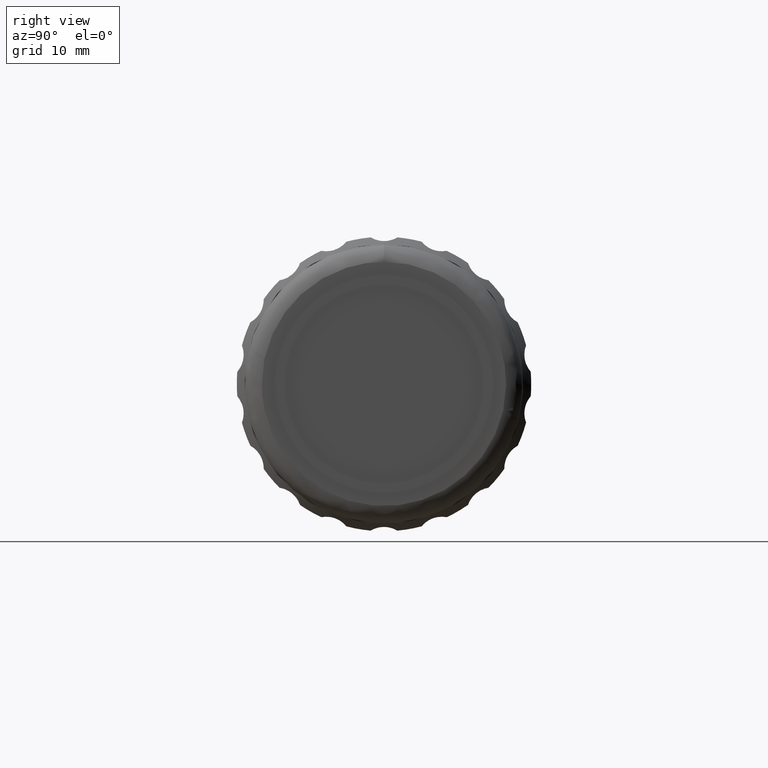
[diagram: clean part render]
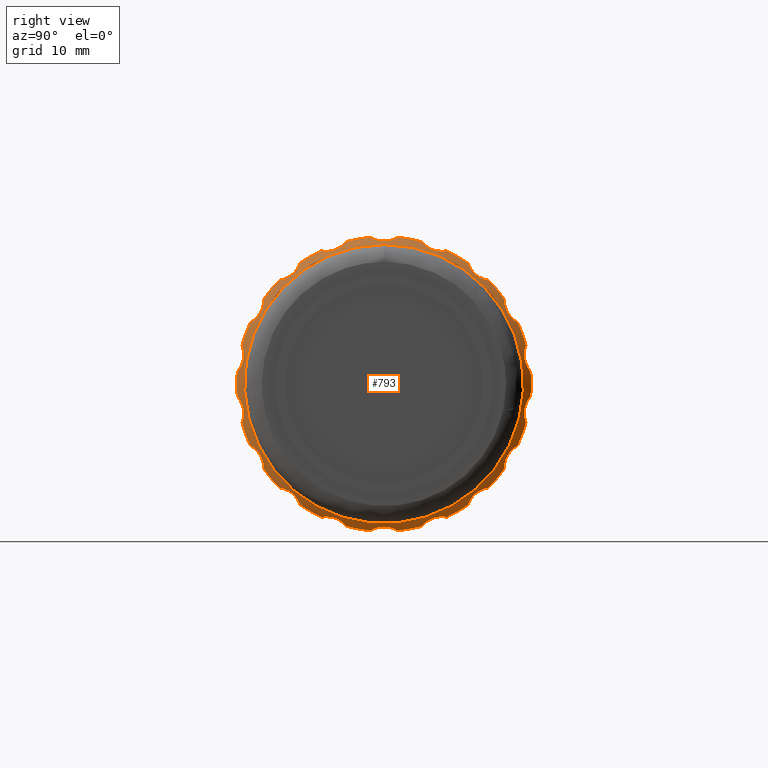
[diagram: same view with one face highlighted and labeled with its STEP entity id]
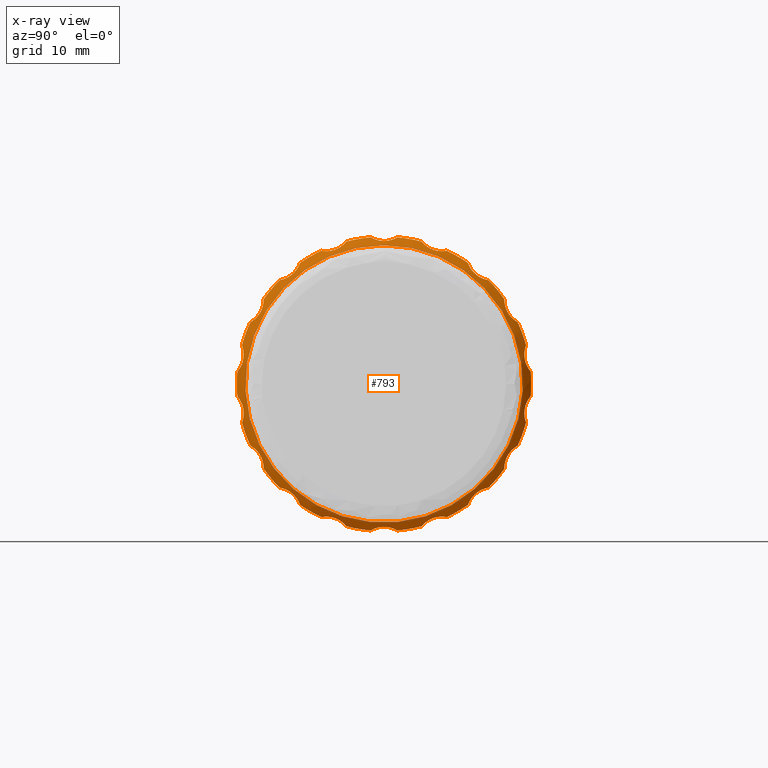
[diagram: x-ray of the same camera — body ghosted, the highlighted face saturated]
A machine part, right view. The second image highlights one B-rep face of the part: STEP entity #793.
The next image is the same camera in x-ray: the body ghosted, the highlighted face saturated — about 11% of this face is hidden behind the body in this view.
In plain terms, the highlighted conical surface has half-angle 45 deg.
Its self-contained STEP definition (entity closure, byte-faithful):
#4 = CARTESIAN_POINT ( 'NONE',  ( 32.44685803487879383, 41.68421451916365328, -16.43753695927281200 ) ) ;
#5 = CARTESIAN_POINT ( 'NONE',  ( 32.44685803487880804, 30.58621645913232001, -7.125210880294336135 ) ) ;
#6 = CARTESIAN_POINT ( 'NONE',  ( 32.93501117040981541, 51.93341409690916066, -15.41763307084374546 ) ) ;
#9 = CARTESIAN_POINT ( 'NONE',  ( 32.85273454226017975, 29.81471811820888362, -3.569201001427910303 ) ) ;
#15 = CARTESIAN_POINT ( 'NONE',  ( 32.71832649179925312, 57.59256539127557062, 12.08340433005123948 ) ) ;
#26 = CARTESIAN_POINT ( 'NONE',  ( 32.71832649179930286, 50.69969541838543137, -16.06300466438838725 ) ) ;
#27 = ORIENTED_EDGE ( 'NONE', *, *, #140, .T. ) ;
#29 = CARTESIAN_POINT ( 'NONE',  ( 32.71993598786254154, 29.39155459811817650, 1.821850393098595644 ) ) ;
#31 = DIRECTION ( 'NONE',  ( 1.000000000000000000, -0.000000000000000000, -0.000000000000000000 ) ) ;
#36 = EDGE_CURVE ( 'NONE', #402, #1075, #71, .T. ) ;
#43 = B_SPLINE_CURVE_WITH_KNOTS ( 'NONE', 3,
 ( #46, #1510, #26, #1343, #2009, #1030, #1656, #1333, #6, #530, #165, #652, #1321, #506 ),
 .UNSPECIFIED., .F., .F.,
 ( 4, 2, 2, 2, 2, 2, 4 ),
 ( 1.201851678989727231E-17, 0.0008570537395405912907, 0.001285580609310872733, 0.001714107479081154392, 0.002142634348851436485, 0.002571161218621717710, 0.003428214958162281029 ),
 .UNSPECIFIED. ) ;
#44 = ORIENTED_EDGE ( 'NONE', *, *, #362, .F. ) ;
#45 = CARTESIAN_POINT ( 'NONE',  ( 32.85210940846934591, 46.72407182862872332, 16.58035111081103352 ) ) ;
#46 = CARTESIAN_POINT ( 'NONE',  ( 32.44685803487880804, 50.35770948083634835, -16.43753695927276226 ) ) ;
#49 = CARTESIAN_POINT ( 'NONE',  ( 32.59371544402078058, 29.70640130127866385, 4.231266864385898607 ) ) ;
#61 = CARTESIAN_POINT ( 'NONE',  ( 32.44685803487877251, 62.96184413496547450, -1.416514203673302941 ) ) ;
#64 = CARTESIAN_POINT ( 'NONE',  ( 32.59397570363890395, 44.68734838835946022, 16.80123075031171354 ) ) ;
#71 = B_SPLINE_CURVE_WITH_KNOTS ( 'NONE', 3,
 ( #284, #2078, #1447, #270, #585, #1756, #1459, #116, #1279, #768, #948, #2112, #2125, #625 ),
 .UNSPECIFIED., .F., .F.,
 ( 4, 2, 2, 2, 2, 2, 4 ),
 ( 3.469446951953614189E-18, 0.0008570537395405488984, 0.001285580609310823510, 0.001714107479081098230, 0.002142634348851372734, 0.002571161218621647020, 0.003428214958162201231 ),
 .UNSPECIFIED. ) ;
#74 = ORIENTED_EDGE ( 'NONE', *, *, #1518, .T. ) ;
#76 = CARTESIAN_POINT ( 'NONE',  ( 32.94700126034479837, 31.80217333596844398, -8.372093230236085759 ) ) ;
#77 = CARTESIAN_POINT ( 'NONE',  ( 32.44685803487878673, 53.26466578228019699, -15.37949139323468017 ) ) ;
#80 = CIRCLE ( 'NONE', #351, 17.00000000000000000 ) ;
#84 = AXIS2_PLACEMENT_3D ( 'NONE', #972, #1116, #1319 ) ;
#85 = AXIS2_PLACEMENT_3D ( 'NONE', #1295, #31, #1870 ) ;
#90 = CARTESIAN_POINT ( 'NONE',  ( 32.85273454226021528, 34.82682132065500724, 12.25041840084325884 ) ) ;
#94 = CARTESIAN_POINT ( 'NONE',  ( 32.71993598786254154, 62.65036940188181802, -1.821850393098604748 ) ) ;
#96 = EDGE_LOOP ( 'NONE', ( #1906, #659, #615, #1448, #1063, #937, #1715, #1821, #2030, #1894, #1689, #1516, #1806, #436, #432, #166, #27, #1739, #44, #119, #1078, #420, #1659, #201, #1260, #74, #1148, #356, #648, #2059, #1938, #1208, #990, #2093, #1785, #1132 ) ) ;
#109 = CARTESIAN_POINT ( 'NONE',  ( 32.71832649179923180, 32.11174389140475682, 9.297543592584467831 ) ) ;
#116 = CARTESIAN_POINT ( 'NONE',  ( 32.94700126034475574, 56.73493106221781090, -12.54897458209228844 ) ) ;
#118 = B_SPLINE_CURVE_WITH_KNOTS ( 'NONE', 3,
 ( #1860, #49, #371, #544, #1033, #844, #1513, #177, #862, #2034, #1205, #29, #992, #1661 ),
 .UNSPECIFIED., .F., .F.,
 ( 4, 2, 2, 2, 2, 2, 4 ),
 ( 2.301370753934467615E-17, 0.0008570537395405523678, 0.001285580609310820258, 0.001714107479081088256, 0.002142634348851356254, 0.002571161218621624035, 0.003428214958162163501 ),
 .UNSPECIFIED. ) ;
#119 = ORIENTED_EDGE ( 'NONE', *, *, #440, .T. ) ;
#124 = DIRECTION ( 'NONE',  ( 1.000000000000000000, -0.000000000000000000, -0.000000000000000000 ) ) ;
#135 = CARTESIAN_POINT ( 'NONE',  ( 32.94700126034474152, 62.24567731064608722, 3.004082092195003106 ) ) ;
#140 = EDGE_CURVE ( 'NONE', #1632, #297, #1847, .T. ) ;
#141 = VERTEX_POINT ( 'NONE', #1593 ) ;
#142 = CARTESIAN_POINT ( 'NONE',  ( 32.44685803487879383, 59.90894840009004696, 9.804276299192796529 ) ) ;
#146 = CARTESIAN_POINT ( 'NONE',  ( 32.44685803487878673, 46.02096199999999726, 0.000000000000000000 ) ) ;
#147 = CARTESIAN_POINT ( 'NONE',  ( 32.94671223884981259, 60.38356800619005327, 8.123483399945433447 ) ) ;
#154 = CARTESIAN_POINT ( 'NONE',  ( 32.59397570363886842, 30.80386254956549053, 7.245672108642462028 ) ) ;
#155 = CARTESIAN_POINT ( 'NONE',  ( 32.44685803487880804, 50.35770948083634835, -16.43753695927276226 ) ) ;
#159 = CARTESIAN_POINT ( 'NONE',  ( 32.93404516599888154, 62.33144101137909843, 2.580766064489510292 ) ) ;
#161 = CARTESIAN_POINT ( 'NONE',  ( 32.44685803487877251, 44.47420285922230221, -16.92948717948720727 ) ) ;
#163 = CARTESIAN_POINT ( 'NONE',  ( 32.59371544402080190, 57.84262694411020078, 12.01319058448289923 ) ) ;
#165 = CARTESIAN_POINT ( 'NONE',  ( 32.85273454226022949, 52.35012353516404460, -15.34024937236954855 ) ) ;
#166 = ORIENTED_EDGE ( 'NONE', *, *, #1272, .T. ) ;
#168 = CARTESIAN_POINT ( 'NONE',  ( 32.94700126034471310, 29.79624668935391441, -3.004082092195002662 ) ) ;
#173 = CARTESIAN_POINT ( 'NONE',  ( 32.44685803487877962, 58.08791284195770288, 11.97450196783888643 ) ) ;
#177 = CARTESIAN_POINT ( 'NONE',  ( 32.94700126034472021, 29.74726016049911692, 2.726265681694551635 ) ) ;
#180 = CARTESIAN_POINT ( 'NONE',  ( 32.44685803487875120, 59.90894840009008959, -9.804276299192858701 ) ) ;
#185 = AXIS2_PLACEMENT_3D ( 'NONE', #598, #1263, #437 ) ;
#190 = CARTESIAN_POINT ( 'NONE',  ( 32.44685803487879383, 61.45570754086768517, -7.125210880294358340 ) ) ;
#194 = DIRECTION ( 'NONE',  ( 1.000000000000000000, -0.000000000000000000, -0.000000000000000000 ) ) ;
#195 = DIRECTION ( 'NONE',  ( 0.000000000000000000, 1.000000000000000000, 0.000000000000000000 ) ) ;
#201 = ORIENTED_EDGE ( 'NONE', *, *, #807, .T. ) ;
#202 = EDGE_CURVE ( 'NONE', #1006, #621, #1270, .T. ) ;
#207 = CARTESIAN_POINT ( 'NONE',  ( 32.59371544402079479, 29.24311120064134784, -1.603818139432597878 ) ) ;
#208 = CARTESIAN_POINT ( 'NONE',  ( 32.44685803487880094, 46.02096199999999726, 0.000000000000000000 ) ) ;
#226 = EDGE_CURVE ( 'NONE', #1884, #711, #759, .T. ) ;
#233 = CARTESIAN_POINT ( 'NONE',  ( 32.88806413580809362, 45.45844958071401720, 16.54982318938169783 ) ) ;
#234 = CARTESIAN_POINT ( 'NONE',  ( 32.85210940846934591, 35.90193111884155996, 13.15323611948971916 ) ) ;
#237 = CARTESIAN_POINT ( 'NONE',  ( 32.44685803487878673, 55.71814035268528187, 13.96297718956140166 ) ) ;
#238 = CARTESIAN_POINT ( 'NONE',  ( 32.88806413580810073, 39.83200033124971640, 15.35935614810683880 ) ) ;
#239 = VERTEX_POINT ( 'NONE', #523 ) ;
#240 = CIRCLE ( 'NONE', #1736, 17.00000000000001421 ) ;
#244 = CARTESIAN_POINT ( 'NONE',  ( 32.88806413580806520, 31.40713848021163557, 7.787761549644993231 ) ) ;
#246 = VERTEX_POINT ( 'NONE', #237 ) ;
#247 = CARTESIAN_POINT ( 'NONE',  ( 32.44685803487877962, 62.42466032279407528, -4.463034991433911358 ) ) ;
#248 = CARTESIAN_POINT ( 'NONE',  ( 32.88806413580805099, 62.41703544440839835, -2.319880045867577234 ) ) ;
#249 = AXIS2_PLACEMENT_3D ( 'NONE', #815, #194, #641 ) ;
#252 = VERTEX_POINT ( 'NONE', #1728 ) ;
#256 = CARTESIAN_POINT ( 'NONE',  ( 32.88671825240741242, 31.97150365186628918, 8.767556099430427352 ) ) ;
#259 = CARTESIAN_POINT ( 'NONE',  ( 32.71832649179923891, 34.44935860872440969, -12.08340433005123593 ) ) ;
#268 = CARTESIAN_POINT ( 'NONE',  ( 32.44685803487878673, 33.95401115804229875, -11.97450196783888821 ) ) ;
#269 = CARTESIAN_POINT ( 'NONE',  ( 32.71993598786257706, 39.28402702137709923, 15.31241445645988897 ) ) ;
#270 = CARTESIAN_POINT ( 'NONE',  ( 32.85210940846933880, 56.13999288115840614, -13.15323611948971383 ) ) ;
#277 = B_SPLINE_CURVE_WITH_KNOTS ( 'NONE', 3,
 ( #1600, #445, #613, #965, #294, #456, #147, #1792, #1969, #305, #1634, #281, #645, #799 ),
 .UNSPECIFIED., .F., .F.,
 ( 4, 2, 2, 2, 2, 2, 4 ),
 ( 1.821459649775647449E-17, 0.0008570537395405575720, 0.001285580609310824811, 0.001714107479081089990, 0.002142634348851355387, 0.002571161218621621000, 0.003428214958162146588 ),
 .UNSPECIFIED. ) ;
#279 = CARTESIAN_POINT ( 'NONE',  ( 32.93501117040979409, 35.62512614287679469, -12.82915025000381171 ) ) ;
#280 = EDGE_CURVE ( 'NONE', #856, #1405, #832, .T. ) ;
#281 = CARTESIAN_POINT ( 'NONE',  ( 32.71993598786254864, 59.93088999195953903, 9.293558664531927249 ) ) ;
#284 = CARTESIAN_POINT ( 'NONE',  ( 32.44685803487879383, 55.71814035268526766, -13.96297718956138922 ) ) ;
#287 = VERTEX_POINT ( 'NONE', #380 ) ;
#292 = EDGE_LOOP ( 'NONE', ( #1269 ) ) ;
#294 = CARTESIAN_POINT ( 'NONE',  ( 32.88671825240740532, 60.63861748527881446, 7.783409789179931870 ) ) ;
#297 = VERTEX_POINT ( 'NONE', #247 ) ;
#302 = DIRECTION ( 'NONE',  ( 1.000000000000000000, -0.000000000000000000, -0.000000000000000000 ) ) ;
#304 = CARTESIAN_POINT ( 'NONE',  ( 32.88671825240740532, 62.41914792436489989, 2.314480119284867854 ) ) ;
#305 = CARTESIAN_POINT ( 'NONE',  ( 32.88806413580805099, 60.07227310050246416, 8.762061639736737462 ) ) ;
#311 = CARTESIAN_POINT ( 'NONE',  ( 32.59371544402083742, 30.80347752111280712, -7.245459005800692687 ) ) ;
#324 = CARTESIAN_POINT ( 'NONE',  ( 32.44685803487875120, 59.90894840009008959, -9.804276299192858701 ) ) ;
#325 = CARTESIAN_POINT ( 'NONE',  ( 32.44685803487877962, 29.08007986503451647, 1.416514203673290728 ) ) ;
#327 = CARTESIAN_POINT ( 'NONE',  ( 32.44685803487877962, 38.77725821771979042, -15.37949139323468373 ) ) ;
#329 = CARTESIAN_POINT ( 'NONE',  ( 32.85210940846933880, 45.31785217137128541, -16.58035111081102997 ) ) ;
#335 = CARTESIAN_POINT ( 'NONE',  ( 32.59371544402078058, 62.79881279935864313, 1.603818139432604095 ) ) ;
#337 = CARTESIAN_POINT ( 'NONE',  ( 32.94700126034472731, 60.38080175225200463, -8.127785578975545988 ) ) ;
#338 = VERTEX_POINT ( 'NONE', #1277 ) ;
#341 = CARTESIAN_POINT ( 'NONE',  ( 32.44685803487878673, 61.45570754086772070, 7.125210880294360116 ) ) ;
#344 = CARTESIAN_POINT ( 'NONE',  ( 32.85273454226024370, 51.03306520244602495, 15.81961940227117758 ) ) ;
#347 = EDGE_CURVE ( 'NONE', #1075, #880, #1117, .T. ) ;
#349 = CARTESIAN_POINT ( 'NONE',  ( 32.94671223884979838, 60.23740799466897045, -8.376639965934810306 ) ) ;
#351 = AXIS2_PLACEMENT_3D ( 'NONE', #1623, #1258, #1926 ) ;
#356 = ORIENTED_EDGE ( 'NONE', *, *, #1065, .T. ) ;
#358 = CARTESIAN_POINT ( 'NONE',  ( 32.88671825240740532, 29.62277607563510173, -2.314480119284870518 ) ) ;
#362 = EDGE_CURVE ( 'NONE', #572, #901, #80, .T. ) ;
#367 = CARTESIAN_POINT ( 'NONE',  ( 32.44685803487878673, 38.77725821771978332, 15.37949139323467307 ) ) ;
#370 = CARTESIAN_POINT ( 'NONE',  ( 32.44685803487877251, 62.96184413496547450, 1.416514203673303385 ) ) ;
#371 = CARTESIAN_POINT ( 'NONE',  ( 32.71832649179923891, 29.77062519033893651, 3.979600334337169087 ) ) ;
#372 = CARTESIAN_POINT ( 'NONE',  ( 32.44685803487877962, 47.56772114077767810, -16.92948717948717885 ) ) ;
#376 = CARTESIAN_POINT ( 'NONE',  ( 32.44685803487880094, 32.13297559991000441, -9.804276299192871136 ) ) ;
#379 = CARTESIAN_POINT ( 'NONE',  ( 32.44685803487879383, 47.56772114077768521, 16.92948717948718240 ) ) ;
#380 = CARTESIAN_POINT ( 'NONE',  ( 32.44685803487879383, 30.58621645913232356, 7.125210880294359228 ) ) ;
#381 = CARTESIAN_POINT ( 'NONE',  ( 32.59371544402080190, 62.33552269872132712, -4.231266864385903936 ) ) ;
#386 = AXIS2_PLACEMENT_3D ( 'NONE', #1946, #124, #592 ) ;
#387 = EDGE_CURVE ( 'NONE', #252, #239, #501, .T. ) ;
#395 = CARTESIAN_POINT ( 'NONE',  ( 32.93501117040978698, 35.19193332115172979, 12.46565831306566530 ) ) ;
#396 = DIRECTION ( 'NONE',  ( 0.000000000000000000, 0.000000000000000000, 1.000000000000000000 ) ) ;
#402 = VERTEX_POINT ( 'NONE', #1445 ) ;
#409 = CARTESIAN_POINT ( 'NONE',  ( 32.94671223884980549, 62.24503099672836015, -3.009155866290945003 ) ) ;
#413 = VERTEX_POINT ( 'NONE', #1993 ) ;
#420 = ORIENTED_EDGE ( 'NONE', *, *, #1439, .T. ) ;
#421 = CARTESIAN_POINT ( 'NONE',  ( 32.59371544402080190, 34.19929705588980795, -12.01319058448289923 ) ) ;
#432 = ORIENTED_EDGE ( 'NONE', *, *, #347, .T. ) ;
#434 = CARTESIAN_POINT ( 'NONE',  ( 32.88671825240739821, 62.22181512952325022, -3.433610011084526459 ) ) ;
#436 = ORIENTED_EDGE ( 'NONE', *, *, #36, .T. ) ;
#437 = DIRECTION ( 'NONE',  ( 0.000000000000000000, 1.000000000000000000, -7.105427357601001859E-15 ) ) ;
#439 = B_SPLINE_CURVE_WITH_KNOTS ( 'NONE', 3,
 ( #173, #163, #15, #814, #1475, #472, #1485, #2143, #650, #495, #1799, #1164, #481, #640 ),
 .UNSPECIFIED., .F., .F.,
 ( 4, 2, 2, 2, 2, 2, 4 ),
 ( 2.255140518769849223E-17, 0.0008570537395405681972, 0.001285580609310841074, 0.001714107479081113843, 0.002142634348851386612, 0.002571161218621659597, 0.003428214958162220313 ),
 .UNSPECIFIED. ) ;
#440 = EDGE_CURVE ( 'NONE', #572, #944, #1559, .T. ) ;
#445 = CARTESIAN_POINT ( 'NONE',  ( 32.59371544402079479, 61.23844647888725490, 7.245459005800729102 ) ) ;
#448 = CARTESIAN_POINT ( 'NONE',  ( 32.93501117040981541, 40.63989956541264092, -15.61104309072564078 ) ) ;
#452 = EDGE_CURVE ( 'NONE', #1091, #611, #1463, .T. ) ;
#456 = CARTESIAN_POINT ( 'NONE',  ( 32.93404516599887444, 60.46512478920966061, 8.003639195957678254 ) ) ;
#466 = CARTESIAN_POINT ( 'NONE',  ( 32.93501117040976567, 62.23105311343569923, 3.145384777659983033 ) ) ;
#472 = CARTESIAN_POINT ( 'NONE',  ( 32.93404516599890286, 56.85662936152226621, 12.46115531925905273 ) ) ;
#475 = CARTESIAN_POINT ( 'NONE',  ( 32.44685803487880804, 62.42466032279404686, 4.463034991433892706 ) ) ;
#477 = DIRECTION ( 'NONE',  ( 0.000000000000000000, 1.000000000000000000, -1.953992523340275511E-14 ) ) ;
#481 = CARTESIAN_POINT ( 'NONE',  ( 32.59397570363891816, 55.79897765731979575, 13.72771975950780821 ) ) ;
#482 = CARTESIAN_POINT ( 'NONE',  ( 32.88671825240747637, 31.40330651472126533, -7.783409789179908778 ) ) ;
#495 = CARTESIAN_POINT ( 'NONE',  ( 32.88806413580808652, 56.22807377565807485, 13.03947610223928599 ) ) ;
#498 = VERTEX_POINT ( 'NONE', #327 ) ;
#500 = CARTESIAN_POINT ( 'NONE',  ( 32.93501117040976567, 29.81087088656429884, -3.145384777659983033 ) ) ;
#501 = B_SPLINE_CURVE_WITH_KNOTS ( 'NONE', 3,
 ( #268, #421, #259, #602, #1236, #1244, #933, #1597, #279, #1076, #2100, #582, #1266, #945 ),
 .UNSPECIFIED., .F., .F.,
 ( 4, 2, 2, 2, 2, 2, 4 ),
 ( 1.636534854170084423E-17, 0.0008570537395405636435, 0.001285580609310837171, 0.001714107479081110807, 0.002142634348851384877, 0.002571161218621658296, 0.003428214958162212507 ),
 .UNSPECIFIED. ) ;
#506 = CARTESIAN_POINT ( 'NONE',  ( 32.44685803487878673, 53.26466578228019699, -15.37949139323468017 ) ) ;
#512 = CARTESIAN_POINT ( 'NONE',  ( 32.93501117040977277, 60.46042658267626280, -8.010141189208873413 ) ) ;
#513 = VERTEX_POINT ( 'NONE', #1551 ) ;
#515 = CARTESIAN_POINT ( 'NONE',  ( 32.44685803487882225, 46.02096199999999726, 0.000000000000000000 ) ) ;
#518 = CARTESIAN_POINT ( 'NONE',  ( 33.44685803487879383, 46.02096199999999726, -2.040851148208057549E-16 ) ) ;
#523 = CARTESIAN_POINT ( 'NONE',  ( 32.44685803487879383, 36.32378364731472686, -13.96297718956140699 ) ) ;
#529 = CARTESIAN_POINT ( 'NONE',  ( 32.44685803487877251, 44.47420285922230221, -16.92948717948720727 ) ) ;
#530 = CARTESIAN_POINT ( 'NONE',  ( 32.88806413580810784, 52.20992366875027102, -15.35935614810682814 ) ) ;
#541 = CARTESIAN_POINT ( 'NONE',  ( 32.88806413580812915, 31.96965089949768668, -8.762061639736757002 ) ) ;
#544 = CARTESIAN_POINT ( 'NONE',  ( 32.85210940846931038, 29.81459741884976111, 3.571575765922793355 ) ) ;
#550 = CARTESIAN_POINT ( 'NONE',  ( 32.44685803487877962, 33.95401115804232006, 11.97450196783887932 ) ) ;
#564 = CARTESIAN_POINT ( 'NONE',  ( 32.59397570363890395, 39.02141578089251084, 15.33186983759482658 ) ) ;
#572 = VERTEX_POINT ( 'NONE', #370 ) ;
#574 = DIRECTION ( 'NONE',  ( 1.000000000000000000, -0.000000000000000000, -0.000000000000000000 ) ) ;
#577 = CARTESIAN_POINT ( 'NONE',  ( 32.71832649179926022, 47.11826188967381768, 16.69450802511423149 ) ) ;
#579 = CARTESIAN_POINT ( 'NONE',  ( 32.85210940846931038, 32.01351164868641774, 8.899086528648499694 ) ) ;
#582 = CARTESIAN_POINT ( 'NONE',  ( 32.71993598786256996, 36.12848957674106742, -13.49056406336132952 ) ) ;
#585 = CARTESIAN_POINT ( 'NONE',  ( 32.88671825240743374, 56.22445354203716761, -13.04400552683793357 ) ) ;
#592 = DIRECTION ( 'NONE',  ( 0.000000000000000000, 1.000000000000000000, -3.552713678800500929E-15 ) ) ;
#593 = CARTESIAN_POINT ( 'NONE',  ( 32.94671223884984812, 40.51493292579076666, 15.55503383706371423 ) ) ;
#596 = EDGE_CURVE ( 'NONE', #141, #141, #905, .T. ) ;
#598 = CARTESIAN_POINT ( 'NONE',  ( 32.44685803487880094, 46.02096199999999726, 0.000000000000000000 ) ) ;
#602 = CARTESIAN_POINT ( 'NONE',  ( 32.85210940846931038, 34.82470436459487928, -12.24933554730703378 ) ) ;
#611 = VERTEX_POINT ( 'NONE', #1698 ) ;
#613 = CARTESIAN_POINT ( 'NONE',  ( 32.71832649179925312, 61.02747999826900127, 7.396964432529774314 ) ) ;
#615 = ORIENTED_EDGE ( 'NONE', *, *, #226, .T. ) ;
#616 = CARTESIAN_POINT ( 'NONE',  ( 32.71832649179927444, 39.27997936338324791, -15.31240733331347137 ) ) ;
#621 = VERTEX_POINT ( 'NONE', #2011 ) ;
#622 = CARTESIAN_POINT ( 'NONE',  ( 32.71993598786254864, 62.27060295615641650, 3.975612932441850322 ) ) ;
#625 = CARTESIAN_POINT ( 'NONE',  ( 32.44685803487877962, 58.08791284195767446, -11.97450196783888110 ) ) ;
#640 = CARTESIAN_POINT ( 'NONE',  ( 32.44685803487878673, 55.71814035268528187, 13.96297718956140166 ) ) ;
#641 = DIRECTION ( 'NONE',  ( 0.000000000000000000, 1.000000000000000000, 0.000000000000000000 ) ) ;
#645 = CARTESIAN_POINT ( 'NONE',  ( 32.59397570363886842, 59.90444783879402024, 9.555558641669255948 ) ) ;
#648 = ORIENTED_EDGE ( 'NONE', *, *, #1248, .T. ) ;
#650 = CARTESIAN_POINT ( 'NONE',  ( 32.93501117040978698, 56.41679785712319273, 12.82915025000380460 ) ) ;
#651 = CARTESIAN_POINT ( 'NONE',  ( 32.71832649179928865, 31.01444400173102878, -7.396964432529726352 ) ) ;
#652 = CARTESIAN_POINT ( 'NONE',  ( 32.71993598786256285, 52.75789697862287397, -15.31241445645989252 ) ) ;
#656 = CARTESIAN_POINT ( 'NONE',  ( 32.93404516599887444, 29.71048298862090320, -2.580766064489512512 ) ) ;
#659 = ORIENTED_EDGE ( 'NONE', *, *, #1534, .T. ) ;
#664 = CARTESIAN_POINT ( 'NONE',  ( 32.44685803487880094, 46.02096199999999726, 0.000000000000000000 ) ) ;
#677 = DIRECTION ( 'NONE',  ( 1.000000000000000000, -0.000000000000000000, -2.040851148208006519E-16 ) ) ;
#678 = DIRECTION ( 'NONE',  ( 0.000000000000000000, 1.000000000000000000, 1.065814103640150437E-14 ) ) ;
#690 = CARTESIAN_POINT ( 'NONE',  ( 32.44685803487878673, 46.02096199999999726, 0.000000000000000000 ) ) ;
#699 = CARTESIAN_POINT ( 'NONE',  ( 32.94671223884986233, 51.80168204276987609, 15.45505450088584176 ) ) ;
#700 = CARTESIAN_POINT ( 'NONE',  ( 32.85273454226022238, 46.72175410136635065, -16.57981987161947046 ) ) ;
#703 = CARTESIAN_POINT ( 'NONE',  ( 32.59371544402077348, 59.90445580054581853, -9.555998637511386562 ) ) ;
#705 = CARTESIAN_POINT ( 'NONE',  ( 32.94700126034477705, 45.87991091177963199, 16.49987880921160865 ) ) ;
#706 = CARTESIAN_POINT ( 'NONE',  ( 32.59397570363888264, 34.19973174975009300, 12.01325914816415796 ) ) ;
#710 = CARTESIAN_POINT ( 'NONE',  ( 32.44685803487879383, 46.02096199999999726, 0.000000000000000000 ) ) ;
#711 = VERTEX_POINT ( 'NONE', #1274 ) ;
#712 = CARTESIAN_POINT ( 'NONE',  ( 32.44685803487879383, 36.32378364731472686, 13.96297718956139100 ) ) ;
#716 = CARTESIAN_POINT ( 'NONE',  ( 32.59397570363889685, 47.35457561164055562, -16.80123075031171709 ) ) ;
#718 = AXIS2_PLACEMENT_3D ( 'NONE', #1368, #2032, #1115 ) ;
#729 = CIRCLE ( 'NONE', #85, 17.00000000000000000 ) ;
#735 = CARTESIAN_POINT ( 'NONE',  ( 32.93501117040980120, 45.73821546641686098, 16.51001374024769675 ) ) ;
#743 = CARTESIAN_POINT ( 'NONE',  ( 32.44685803487876541, 41.68421451916363196, 16.43753695927285818 ) ) ;
#750 = VERTEX_POINT ( 'NONE', #2107 ) ;
#752 = CARTESIAN_POINT ( 'NONE',  ( 32.93404516599888154, 62.23047274774312143, -3.153385542406664577 ) ) ;
#753 = EDGE_CURVE ( 'NONE', #1767, #287, #1533, .T. ) ;
#759 = CIRCLE ( 'NONE', #1499, 16.99999999999997513 ) ;
#761 = AXIS2_PLACEMENT_3D ( 'NONE', #518, #677, #396 ) ;
#768 = CARTESIAN_POINT ( 'NONE',  ( 32.88806413580807941, 57.08989280161696911, -12.31632407541566110 ) ) ;
#777 = VERTEX_POINT ( 'NONE', #4 ) ;
#789 = CARTESIAN_POINT ( 'NONE',  ( 32.88671825240746216, 39.82626761767232892, -15.35848564612279432 ) ) ;
#790 = CIRCLE ( 'NONE', #1010, 17.00000000000000000 ) ;
#793 = ADVANCED_FACE ( 'NONE', ( #805, #1654 ), #1606, .T. ) ;
#799 = CARTESIAN_POINT ( 'NONE',  ( 32.44685803487879383, 59.90894840009004696, 9.804276299192796529 ) ) ;
#802 = AXIS2_PLACEMENT_3D ( 'NONE', #1039, #1049, #1716 ) ;
#805 = FACE_OUTER_BOUND ( 'NONE', #96, .T. ) ;
#807 = EDGE_CURVE ( 'NONE', #1405, #246, #439, .T. ) ;
#814 = CARTESIAN_POINT ( 'NONE',  ( 32.85210940846933170, 57.21721963540510814, 12.24933554730703378 ) ) ;
#815 = CARTESIAN_POINT ( 'NONE',  ( 32.44685803487881515, 46.02096199999999726, 0.000000000000000000 ) ) ;
#816 = DIRECTION ( 'NONE',  ( -1.000000000000000000, 0.000000000000000000, 0.000000000000000000 ) ) ;
#819 = CARTESIAN_POINT ( 'NONE',  ( 32.88806413580812915, 51.15274612974332058, 15.74413730464015160 ) ) ;
#832 = CIRCLE ( 'NONE', #1986, 16.99999999999998579 ) ;
#844 = CARTESIAN_POINT ( 'NONE',  ( 32.93404516599887444, 29.81145125225690151, 3.153385542406650810 ) ) ;
#849 = CARTESIAN_POINT ( 'NONE',  ( 32.44685803487880804, 62.42466032279404686, 4.463034991433892706 ) ) ;
#853 = CARTESIAN_POINT ( 'NONE',  ( 32.44685803487880804, 29.61726367720594766, -4.463034991433898035 ) ) ;
#856 = VERTEX_POINT ( 'NONE', #142 ) ;
#862 = CARTESIAN_POINT ( 'NONE',  ( 32.93501117040975856, 29.71267404596757444, 2.588482820839963949 ) ) ;
#870 = CARTESIAN_POINT ( 'NONE',  ( 32.59371544402081611, 47.35495267834149047, 16.80145764331209435 ) ) ;
#878 = CARTESIAN_POINT ( 'NONE',  ( 32.88806413580809362, 46.58347441928598442, -16.54982318938170494 ) ) ;
#880 = VERTEX_POINT ( 'NONE', #324 ) ;
#884 = CARTESIAN_POINT ( 'NONE',  ( 32.44685803487877251, 29.08007986503451647, -1.416514203673299832 ) ) ;
#886 = CARTESIAN_POINT ( 'NONE',  ( 32.93404516599889575, 40.64711861377920599, 15.61454086166572175 ) ) ;
#889 = VERTEX_POINT ( 'NONE', #155 ) ;
#890 = CARTESIAN_POINT ( 'NONE',  ( 32.85273454226021528, 45.32016989863367229, 16.57981987161946691 ) ) ;
#895 = DIRECTION ( 'NONE',  ( 0.000000000000000000, 1.000000000000000000, 0.000000000000000000 ) ) ;
#896 = AXIS2_PLACEMENT_3D ( 'NONE', #1501, #1336, #678 ) ;
#901 = VERTEX_POINT ( 'NONE', #1675 ) ;
#902 = CARTESIAN_POINT ( 'NONE',  ( 32.94671223884989075, 31.65835599381003362, -8.123483399945421013 ) ) ;
#905 = CIRCLE ( 'NONE', #761, 15.99999999999999645 ) ;
#912 = CARTESIAN_POINT ( 'NONE',  ( 32.85273454226021528, 39.69180046483592861, 15.34024937236955743 ) ) ;
#925 = VERTEX_POINT ( 'NONE', #1320 ) ;
#933 = CARTESIAN_POINT ( 'NONE',  ( 32.94671223884983391, 35.30292207748090760, -12.54587797077277322 ) ) ;
#937 = ORIENTED_EDGE ( 'NONE', *, *, #387, .T. ) ;
#944 = VERTEX_POINT ( 'NONE', #849 ) ;
#945 = CARTESIAN_POINT ( 'NONE',  ( 32.44685803487879383, 36.32378364731472686, -13.96297718956140699 ) ) ;
#948 = CARTESIAN_POINT ( 'NONE',  ( 32.85273454226019396, 57.21510267934501570, -12.25041840084325528 ) ) ;
#962 = CARTESIAN_POINT ( 'NONE',  ( 32.44685803487877962, 46.02096199999999726, 0.000000000000000000 ) ) ;
#965 = CARTESIAN_POINT ( 'NONE',  ( 32.85210940846929617, 60.73152217994227442, 7.681264582162558696 ) ) ;
#972 = CARTESIAN_POINT ( 'NONE',  ( 32.44685803487877251, 46.02096199999999726, 0.000000000000000000 ) ) ;
#977 = CARTESIAN_POINT ( 'NONE',  ( 32.71832649179923180, 62.65238706205303032, 1.818341456876850781 ) ) ;
#981 = AXIS2_PLACEMENT_3D ( 'NONE', #690, #1363, #2028 ) ;
#988 = EDGE_CURVE ( 'NONE', #338, #252, #1570, .T. ) ;
#990 = ORIENTED_EDGE ( 'NONE', *, *, #1808, .T. ) ;
#992 = CARTESIAN_POINT ( 'NONE',  ( 32.59397570363886842, 29.24340012357269458, 1.604150078087035025 ) ) ;
#1000 = DIRECTION ( 'NONE',  ( 0.000000000000000000, 1.000000000000000000, 0.000000000000000000 ) ) ;
#1005 = CARTESIAN_POINT ( 'NONE',  ( 32.88671825240738400, 60.07042034813371600, -8.767556099430425576 ) ) ;
#1006 = VERTEX_POINT ( 'NONE', #529 ) ;
#1010 = AXIS2_PLACEMENT_3D ( 'NONE', #664, #816, #1355 ) ;
#1024 = CARTESIAN_POINT ( 'NONE',  ( 32.94700126034480547, 51.53170824842818121, 15.55305667428728889 ) ) ;
#1028 = EDGE_CURVE ( 'NONE', #711, #338, #1216, .T. ) ;
#1030 = CARTESIAN_POINT ( 'NONE',  ( 32.93404516599894549, 51.39480538622076011, -15.61454086166568445 ) ) ;
#1033 = CARTESIAN_POINT ( 'NONE',  ( 32.88671825240740532, 29.82010887047672298, 3.433610011084513136 ) ) ;
#1034 = CARTESIAN_POINT ( 'NONE',  ( 32.44685803487882225, 46.02096199999999726, 0.000000000000000000 ) ) ;
#1039 = CARTESIAN_POINT ( 'NONE',  ( 32.44685803487879383, 46.02096199999999726, 0.000000000000000000 ) ) ;
#1043 = CIRCLE ( 'NONE', #896, 17.00000000000000000 ) ;
#1044 = CARTESIAN_POINT ( 'NONE',  ( 32.88671825240744084, 45.45276486285489881, -16.55096588861032814 ) ) ;
#1048 = CIRCLE ( 'NONE', #1395, 17.00000000000000000 ) ;
#1049 = DIRECTION ( 'NONE',  ( 1.000000000000000000, -0.000000000000000000, -0.000000000000000000 ) ) ;
#1059 = CARTESIAN_POINT ( 'NONE',  ( 32.59397570363893237, 32.13747616120608797, -9.555558641669259501 ) ) ;
#1061 = CARTESIAN_POINT ( 'NONE',  ( 32.94671223884981970, 31.80451600533105250, 8.376639965934812082 ) ) ;
#1063 = ORIENTED_EDGE ( 'NONE', *, *, #988, .T. ) ;
#1065 = EDGE_CURVE ( 'NONE', #1667, #750, #1612, .T. ) ;
#1075 = VERTEX_POINT ( 'NONE', #1367 ) ;
#1076 = CARTESIAN_POINT ( 'NONE',  ( 32.88806413580807941, 35.81385022434190546, -13.03947610223929310 ) ) ;
#1077 = CARTESIAN_POINT ( 'NONE',  ( 32.88671825240743374, 40.89412893152615425, 15.74715537869002624 ) ) ;
#1078 = ORIENTED_EDGE ( 'NONE', *, *, #1970, .T. ) ;
#1081 = CARTESIAN_POINT ( 'NONE',  ( 32.71832649179926733, 36.13051957456375618, 13.49406587643664324 ) ) ;
#1091 = VERTEX_POINT ( 'NONE', #367 ) ;
#1096 = CARTESIAN_POINT ( 'NONE',  ( 32.94700126034473442, 31.66112224774798278, 8.127785578975540659 ) ) ;
#1101 = B_SPLINE_CURVE_WITH_KNOTS ( 'NONE', 3,
 ( #1359, #207, #2012, #1849, #358, #656, #1828, #168, #500, #1532, #9, #1176, #2004, #853 ),
 .UNSPECIFIED., .F., .F.,
 ( 4, 2, 2, 2, 2, 2, 4 ),
 ( 9.986437839578378192E-18, 0.0008570537395405388153, 0.001285580609310806380, 0.001714107479081073727, 0.002142634348851341075, 0.002571161218621608856, 0.003428214958162145286 ),
 .UNSPECIFIED. ) ;
#1114 = CARTESIAN_POINT ( 'NONE',  ( 32.85273454226025081, 41.00885879755396957, -15.81961940227117047 ) ) ;
#1115 = DIRECTION ( 'NONE',  ( 0.000000000000000000, 1.000000000000000000, 0.000000000000000000 ) ) ;
#1116 = DIRECTION ( 'NONE',  ( -1.000000000000000000, 0.000000000000000000, 2.040851148208006519E-16 ) ) ;
#1117 = CIRCLE ( 'NONE', #386, 17.00000000000001421 ) ;
#1122 = EDGE_CURVE ( 'NONE', #239, #498, #1430, .T. ) ;
#1128 = CARTESIAN_POINT ( 'NONE',  ( 32.59397570363893237, 41.52778952056901574, -16.24411527478351047 ) ) ;
#1132 = ORIENTED_EDGE ( 'NONE', *, *, #1599, .T. ) ;
#1140 = CARTESIAN_POINT ( 'NONE',  ( 32.71832649179921759, 59.93018010859523770, -9.297543592584473160 ) ) ;
#1148 = ORIENTED_EDGE ( 'NONE', *, *, #2063, .T. ) ;
#1150 = EDGE_CURVE ( 'NONE', #498, #777, #1631, .T. ) ;
#1152 = CARTESIAN_POINT ( 'NONE',  ( 32.93404516599894549, 31.57679921079044405, -8.003639195957664043 ) ) ;
#1158 = CARTESIAN_POINT ( 'NONE',  ( 32.59371544402080190, 44.68697132165852537, -16.80145764331209435 ) ) ;
#1164 = CARTESIAN_POINT ( 'NONE',  ( 32.71993598786259128, 55.91343442325894841, 13.49056406336132952 ) ) ;
#1176 = CARTESIAN_POINT ( 'NONE',  ( 32.71993598786256285, 29.77132104384358158, -3.975612932441852099 ) ) ;
#1178 = CARTESIAN_POINT ( 'NONE',  ( 32.85273454226017265, 60.72990324967569364, -7.683006173255046534 ) ) ;
#1181 = DIRECTION ( 'NONE',  ( 1.000000000000000000, -0.000000000000000000, -0.000000000000000000 ) ) ;
#1205 = CARTESIAN_POINT ( 'NONE',  ( 32.85273454226015843, 29.57133557555759396, 2.188910012077406986 ) ) ;
#1207 = CARTESIAN_POINT ( 'NONE',  ( 32.44685803487877962, 62.42466032279407528, -4.463034991433911358 ) ) ;
#1208 = ORIENTED_EDGE ( 'NONE', *, *, #2026, .T. ) ;
#1209 = EDGE_CURVE ( 'NONE', #287, #1350, #1917, .T. ) ;
#1214 = CARTESIAN_POINT ( 'NONE',  ( 32.71993598786257706, 47.11445589906591636, -16.69313033811515012 ) ) ;
#1216 = B_SPLINE_CURVE_WITH_KNOTS ( 'NONE', 3,
 ( #5, #311, #651, #1308, #482, #1152, #902, #76, #1865, #541, #1230, #1376, #1059, #376 ),
 .UNSPECIFIED., .F., .F.,
 ( 4, 2, 2, 2, 2, 2, 4 ),
 ( 8.673617379884035472E-19, 0.0008570537395405953022, 0.001285580609310886611, 0.001714107479081175859, 0.002142634348851465542, 0.002571161218621754573, 0.003428214958162343045 ),
 .UNSPECIFIED. ) ;
#1222 = EDGE_CURVE ( 'NONE', #246, #1962, #1048, .T. ) ;
#1230 = CARTESIAN_POINT ( 'NONE',  ( 32.85273454226025791, 32.01281285169071822, -8.896813698364468337 ) ) ;
#1236 = CARTESIAN_POINT ( 'NONE',  ( 32.88671825240743374, 34.94694193895062284, -12.31354536760549223 ) ) ;
#1237 = CARTESIAN_POINT ( 'NONE',  ( 32.59371544402079479, 41.52806624538890645, 16.24445744886884668 ) ) ;
#1240 = DIRECTION ( 'NONE',  ( 1.000000000000000000, -0.000000000000000000, -0.000000000000000000 ) ) ;
#1242 = CARTESIAN_POINT ( 'NONE',  ( 32.93404516599888865, 31.86752573897096852, 8.507192313874586631 ) ) ;
#1244 = CARTESIAN_POINT ( 'NONE',  ( 32.93404516599888865, 35.18529463847772121, -12.46115531925905806 ) ) ;
#1246 = CARTESIAN_POINT ( 'NONE',  ( 32.71832649179924601, 41.34222858161454184, 16.06300466438845120 ) ) ;
#1248 = EDGE_CURVE ( 'NONE', #750, #925, #729, .T. ) ;
#1251 = CARTESIAN_POINT ( 'NONE',  ( 32.88806413580811494, 40.88917787025669526, -15.74413730464013028 ) ) ;
#1258 = DIRECTION ( 'NONE',  ( -1.000000000000000000, 0.000000000000000000, 0.000000000000000000 ) ) ;
#1260 = ORIENTED_EDGE ( 'NONE', *, *, #1222, .T. ) ;
#1263 = DIRECTION ( 'NONE',  ( 1.000000000000000000, -0.000000000000000000, -0.000000000000000000 ) ) ;
#1266 = CARTESIAN_POINT ( 'NONE',  ( 32.59397570363889685, 36.24294634268018456, -13.72771975950780288 ) ) ;
#1269 = ORIENTED_EDGE ( 'NONE', *, *, #596, .F. ) ;
#1270 = B_SPLINE_CURVE_WITH_KNOTS ( 'NONE', 3,
 ( #161, #1158, #1313, #329, #1044, #1390, #1371, #1564, #2054, #878, #700, #1214, #716, #372 ),
 .UNSPECIFIED., .F., .F.,
 ( 4, 2, 2, 2, 2, 2, 4 ),
 ( 1.699674944388147786E-17, 0.0008570537395406005064, 0.001285580609310882491, 0.001714107479081164800, 0.002142634348851446893, 0.002571161218621729420, 0.003428214958162306616 ),
 .UNSPECIFIED. ) ;
#1272 = EDGE_CURVE ( 'NONE', #880, #1632, #1550, .T. ) ;
#1274 = CARTESIAN_POINT ( 'NONE',  ( 32.44685803487880804, 30.58621645913232001, -7.125210880294336135 ) ) ;
#1277 = CARTESIAN_POINT ( 'NONE',  ( 32.44685803487880094, 32.13297559991000441, -9.804276299192871136 ) ) ;
#1278 = CARTESIAN_POINT ( 'NONE',  ( 32.59371544402083742, 53.02094014788040255, 15.33195408286590578 ) ) ;
#1279 = CARTESIAN_POINT ( 'NONE',  ( 32.93501117040977988, 56.84999067884827895, -12.46565831306566352 ) ) ;
#1281 = CARTESIAN_POINT ( 'NONE',  ( 32.71993598786259838, 41.33912331703049858, -16.06040833662843070 ) ) ;
#1286 = EDGE_CURVE ( 'NONE', #621, #889, #2027, .T. ) ;
#1295 = CARTESIAN_POINT ( 'NONE',  ( 32.44685803487878673, 46.02096199999999726, 0.000000000000000000 ) ) ;
#1308 = CARTESIAN_POINT ( 'NONE',  ( 32.85210940846936722, 31.31040182005778760, -7.681264582162520504 ) ) ;
#1311 = CARTESIAN_POINT ( 'NONE',  ( 32.94671223884980549, 62.29579183602519521, 2.721276841238303934 ) ) ;
#1313 = CARTESIAN_POINT ( 'NONE',  ( 32.71832649179925312, 44.92366211032619816, -16.69450802511422438 ) ) ;
#1319 = DIRECTION ( 'NONE',  ( 0.000000000000000000, 0.000000000000000000, 1.000000000000000000 ) ) ;
#1320 = CARTESIAN_POINT ( 'NONE',  ( 32.44685803487876541, 41.68421451916363196, 16.43753695927285818 ) ) ;
#1321 = CARTESIAN_POINT ( 'NONE',  ( 32.59397570363889685, 53.02050821910746947, -15.33186983759483013 ) ) ;
#1333 = CARTESIAN_POINT ( 'NONE',  ( 32.94700126034477705, 51.79679758193721995, -15.45657204746853175 ) ) ;
#1336 = DIRECTION ( 'NONE',  ( 1.000000000000000000, -0.000000000000000000, -0.000000000000000000 ) ) ;
#1343 = CARTESIAN_POINT ( 'NONE',  ( 32.85210940846939565, 51.03106894574504793, -15.82091131322981070 ) ) ;
#1347 = CARTESIAN_POINT ( 'NONE',  ( 32.44685803487880094, 50.35770948083630572, 16.43753695927281200 ) ) ;
#1349 = CARTESIAN_POINT ( 'NONE',  ( 32.93404516599885312, 60.17439826102904021, -8.507192313874591960 ) ) ;
#1350 = VERTEX_POINT ( 'NONE', #2036 ) ;
#1352 = AXIS2_PLACEMENT_3D ( 'NONE', #515, #1181, #195 ) ;
#1355 = DIRECTION ( 'NONE',  ( 0.000000000000000000, 0.000000000000000000, 1.000000000000000000 ) ) ;
#1358 = EDGE_CURVE ( 'NONE', #297, #901, #1732, .T. ) ;
#1359 = CARTESIAN_POINT ( 'NONE',  ( 32.44685803487877251, 29.08007986503451647, -1.416514203673299832 ) ) ;
#1360 = EDGE_CURVE ( 'NONE', #925, #1091, #2044, .T. ) ;
#1363 = DIRECTION ( 'NONE',  ( 1.000000000000000000, -0.000000000000000000, -0.000000000000000000 ) ) ;
#1367 = CARTESIAN_POINT ( 'NONE',  ( 32.44685803487877962, 58.08791284195767446, -11.97450196783888110 ) ) ;
#1368 = CARTESIAN_POINT ( 'NONE',  ( 32.44685803487880804, 46.02096199999999726, 0.000000000000000000 ) ) ;
#1370 = CARTESIAN_POINT ( 'NONE',  ( 32.71993598786259838, 50.70280068296951725, 16.06040833662844491 ) ) ;
#1371 = CARTESIAN_POINT ( 'NONE',  ( 32.94671223884985523, 45.87480198847892865, -16.50012336588022066 ) ) ;
#1376 = CARTESIAN_POINT ( 'NONE',  ( 32.71993598786259838, 32.11103400804057628, -9.293558664531980540 ) ) ;
#1381 = CARTESIAN_POINT ( 'NONE',  ( 32.85273454226017975, 62.47058842444242543, -2.188910012077419420 ) ) ;
#1390 = CARTESIAN_POINT ( 'NONE',  ( 32.93404516599891707, 45.73023547181938397, -16.51083150983224002 ) ) ;
#1395 = AXIS2_PLACEMENT_3D ( 'NONE', #1627, #1240, #1907 ) ;
#1396 = CARTESIAN_POINT ( 'NONE',  ( 32.44685803487879383, 47.56772114077768521, 16.92948717948718240 ) ) ;
#1405 = VERTEX_POINT ( 'NONE', #1765 ) ;
#1407 = CARTESIAN_POINT ( 'NONE',  ( 32.71993598786254864, 34.45315972681317618, 12.08479540418656484 ) ) ;
#1410 = EDGE_CURVE ( 'NONE', #777, #1006, #1819, .T. ) ;
#1430 = CIRCLE ( 'NONE', #802, 17.00000000000000000 ) ;
#1433 = AXIS2_PLACEMENT_3D ( 'NONE', #710, #574, #2055 ) ;
#1439 = EDGE_CURVE ( 'NONE', #1992, #856, #277, .T. ) ;
#1445 = CARTESIAN_POINT ( 'NONE',  ( 32.44685803487879383, 55.71814035268526766, -13.96297718956138922 ) ) ;
#1447 = CARTESIAN_POINT ( 'NONE',  ( 32.71832649179927444, 55.91140442543625255, -13.49406587643664146 ) ) ;
#1448 = ORIENTED_EDGE ( 'NONE', *, *, #1028, .T. ) ;
#1457 = CARTESIAN_POINT ( 'NONE',  ( 32.85210940846936722, 52.35248318087391795, 15.33995586450727089 ) ) ;
#1459 = CARTESIAN_POINT ( 'NONE',  ( 32.94671223884982680, 56.51507179325524532, -12.73377765964754893 ) ) ;
#1463 = CIRCLE ( 'NONE', #1465, 17.00000000000000000 ) ;
#1465 = AXIS2_PLACEMENT_3D ( 'NONE', #146, #1469, #1000 ) ;
#1466 = DIRECTION ( 'NONE',  ( 0.000000000000000000, 1.000000000000000000, 6.217248937900876626E-15 ) ) ;
#1469 = DIRECTION ( 'NONE',  ( 1.000000000000000000, -0.000000000000000000, -0.000000000000000000 ) ) ;
#1475 = CARTESIAN_POINT ( 'NONE',  ( 32.88671825240743374, 57.09498206104940010, 12.31354536760548690 ) ) ;
#1479 = CARTESIAN_POINT ( 'NONE',  ( 32.85273454226017975, 62.22720588179112156, 3.569201001427911191 ) ) ;
#1485 = CARTESIAN_POINT ( 'NONE',  ( 32.94671223884983391, 56.73900192251907981, 12.54587797077277322 ) ) ;
#1490 = CARTESIAN_POINT ( 'NONE',  ( 32.93501117040981541, 51.40202443458736070, 15.61104309072564966 ) ) ;
#1499 = AXIS2_PLACEMENT_3D ( 'NONE', #1034, #1892, #895 ) ;
#1501 = CARTESIAN_POINT ( 'NONE',  ( 32.44685803487878673, 46.02096199999999726, 0.000000000000000000 ) ) ;
#1503 = DIRECTION ( 'NONE',  ( 1.000000000000000000, -0.000000000000000000, -0.000000000000000000 ) ) ;
#1505 = CARTESIAN_POINT ( 'NONE',  ( 32.85210940846928196, 60.02841235131358388, -8.899086528648503247 ) ) ;
#1510 = CARTESIAN_POINT ( 'NONE',  ( 32.59371544402085163, 50.51385775461107386, -16.24445744886877918 ) ) ;
#1513 = CARTESIAN_POINT ( 'NONE',  ( 32.94671223884979128, 29.79689300327163792, 3.009155866290929904 ) ) ;
#1515 = CARTESIAN_POINT ( 'NONE',  ( 32.88806413580804389, 60.63478551978837316, -7.787761549644995007 ) ) ;
#1516 = ORIENTED_EDGE ( 'NONE', *, *, #1959, .T. ) ;
#1518 = EDGE_CURVE ( 'NONE', #1962, #513, #1981, .T. ) ;
#1529 = CARTESIAN_POINT ( 'NONE',  ( 32.88671825240743374, 46.58915913714510282, 16.55096588861032814 ) ) ;
#1532 = CARTESIAN_POINT ( 'NONE',  ( 32.88806413580805810, 29.82024706863964880, -3.427813229224472291 ) ) ;
#1533 = B_SPLINE_CURVE_WITH_KNOTS ( 'NONE', 3,
 ( #1574, #1897, #109, #579, #256, #1242, #1061, #1096, #1594, #244, #1585, #1629, #154, #1641 ),
 .UNSPECIFIED., .F., .F.,
 ( 4, 2, 2, 2, 2, 2, 4 ),
 ( 1.398578778534940505E-17, 0.0008570537395405541025, 0.001285580609310826112, 0.001714107479081098664, 0.002142634348851370999, 0.002571161218621643117, 0.003428214958162182583 ),
 .UNSPECIFIED. ) ;
#1534 = EDGE_CURVE ( 'NONE', #1766, #1884, #1101, .T. ) ;
#1546 = CARTESIAN_POINT ( 'NONE',  ( 32.85210940846930328, 62.22732658115022275, -3.571575765922810231 ) ) ;
#1549 = CARTESIAN_POINT ( 'NONE',  ( 32.94671223884984101, 35.52685220674476341, 12.73377765964755071 ) ) ;
#1550 = B_SPLINE_CURVE_WITH_KNOTS ( 'NONE', 3,
 ( #180, #703, #1140, #1505, #1005, #1349, #349, #337, #512, #1515, #1178, #1797, #1862, #190 ),
 .UNSPECIFIED., .F., .F.,
 ( 4, 2, 2, 2, 2, 2, 4 ),
 ( 2.194270917860438266E-17, 0.0008570537395405623425, 0.001285580609310835003, 0.001714107479081107555, 0.002142634348851380106, 0.002571161218621652658, 0.003428214958162185619 ),
 .UNSPECIFIED. ) ;
#1551 = CARTESIAN_POINT ( 'NONE',  ( 32.44685803487880094, 50.35770948083630572, 16.43753695927281200 ) ) ;
#1557 = CARTESIAN_POINT ( 'NONE',  ( 32.71993598786258417, 44.92746810093409238, 16.69313033811514302 ) ) ;
#1559 = B_SPLINE_CURVE_WITH_KNOTS ( 'NONE', 3,
 ( #1968, #335, #977, #1647, #304, #159, #1311, #135, #466, #2122, #1479, #622, #1633, #475 ),
 .UNSPECIFIED., .F., .F.,
 ( 4, 2, 2, 2, 2, 2, 4 ),
 ( 3.903127820947815962E-18, 0.0008570537395405356711, 0.001285580609310801392, 0.001714107479081067439, 0.002142634348851333269, 0.002571161218621598882, 0.003428214958162131842 ),
 .UNSPECIFIED. ) ;
#1564 = CARTESIAN_POINT ( 'NONE',  ( 32.94700126034476284, 46.16201308822036253, -16.49987880921160865 ) ) ;
#1570 = CIRCLE ( 'NONE', #249, 16.99999999999998579 ) ;
#1574 = CARTESIAN_POINT ( 'NONE',  ( 32.44685803487876541, 32.13297559990991914, 9.804276299192837385 ) ) ;
#1578 = CARTESIAN_POINT ( 'NONE',  ( 32.44685803487878673, 38.77725821771978332, 15.37949139323467307 ) ) ;
#1581 = CARTESIAN_POINT ( 'NONE',  ( 32.85210940846936012, 39.68944081912606947, -15.33995586450726911 ) ) ;
#1585 = CARTESIAN_POINT ( 'NONE',  ( 32.85273454226017975, 31.31202075032431154, 7.683006173255041205 ) ) ;
#1592 = CARTESIAN_POINT ( 'NONE',  ( 32.94700126034479837, 40.51021575157182042, -15.55305667428728533 ) ) ;
#1593 = CARTESIAN_POINT ( 'NONE',  ( 33.44685803487879383, 46.02096199999999726, 15.99999999999999645 ) ) ;
#1594 = CARTESIAN_POINT ( 'NONE',  ( 32.93501117040977988, 31.58149741732376725, 8.010141189208871637 ) ) ;
#1597 = CARTESIAN_POINT ( 'NONE',  ( 32.94700126034473442, 35.52309574243637513, -12.73030636577401431 ) ) ;
#1599 = EDGE_CURVE ( 'NONE', #1350, #1918, #118, .T. ) ;
#1600 = CARTESIAN_POINT ( 'NONE',  ( 32.44685803487878673, 61.45570754086772070, 7.125210880294360116 ) ) ;
#1601 = EDGE_CURVE ( 'NONE', #2047, #402, #1043, .T. ) ;
#1606 = CONICAL_SURFACE ( 'NONE', #84, 17.00000000000001421, 0.7853981633974447263 ) ;
#1612 = B_SPLINE_CURVE_WITH_KNOTS ( 'NONE', 3,
 ( #1396, #870, #577, #45, #1529, #2060, #1723, #705, #735, #233, #890, #1557, #64, #2071 ),
 .UNSPECIFIED., .F., .F.,
 ( 4, 2, 2, 2, 2, 2, 4 ),
 ( 0.000000000000000000, 0.0008570537395405847855, 0.001285580609310872299, 0.001714107479081159813, 0.002142634348851447327, 0.002571161218621734624, 0.003428214958162296641 ),
 .UNSPECIFIED. ) ;
#1623 = CARTESIAN_POINT ( 'NONE',  ( 32.44685803487880094, 46.02096199999999726, 0.000000000000000000 ) ) ;
#1624 = CARTESIAN_POINT ( 'NONE',  ( 32.71832649179928865, 52.76194463661674661, 15.31240733331347492 ) ) ;
#1627 = CARTESIAN_POINT ( 'NONE',  ( 32.44685803487878673, 46.02096199999999726, 0.000000000000000000 ) ) ;
#1629 = CARTESIAN_POINT ( 'NONE',  ( 32.71993598786255575, 31.01754010897460034, 7.399571673583222875 ) ) ;
#1631 = B_SPLINE_CURVE_WITH_KNOTS ( 'NONE', 3,
 ( #2114, #1758, #616, #1581, #789, #1940, #1932, #1592, #448, #1251, #1114, #1281, #1128, #1920 ),
 .UNSPECIFIED., .F., .F.,
 ( 4, 2, 2, 2, 2, 2, 4 ),
 ( 1.561251128379126385E-17, 0.0008570537395405986632, 0.001285580609310886828, 0.001714107479081174992, 0.002142634348851465108, 0.002571161218621755007, 0.003428214958162318325 ),
 .UNSPECIFIED. ) ;
#1632 = VERTEX_POINT ( 'NONE', #2065 ) ;
#1633 = CARTESIAN_POINT ( 'NONE',  ( 32.59397570363886132, 62.33536472968091147, 4.230856126619375601 ) ) ;
#1634 = CARTESIAN_POINT ( 'NONE',  ( 32.85273454226017975, 60.02911114830940420, 8.896813698364438139 ) ) ;
#1641 = CARTESIAN_POINT ( 'NONE',  ( 32.44685803487879383, 30.58621645913232356, 7.125210880294359228 ) ) ;
#1647 = CARTESIAN_POINT ( 'NONE',  ( 32.85210940846929617, 62.47151406203238366, 2.186719745017569494 ) ) ;
#1654 = FACE_BOUND ( 'NONE', #292, .T. ) ;
#1656 = CARTESIAN_POINT ( 'NONE',  ( 32.94671223884987654, 51.52699107420922076, -15.55503383706367870 ) ) ;
#1659 = ORIENTED_EDGE ( 'NONE', *, *, #280, .T. ) ;
#1661 = CARTESIAN_POINT ( 'NONE',  ( 32.44685803487877962, 29.08007986503451647, 1.416514203673290728 ) ) ;
#1666 = CARTESIAN_POINT ( 'NONE',  ( 32.44685803487880804, 29.61726367720594766, -4.463034991433898035 ) ) ;
#1667 = VERTEX_POINT ( 'NONE', #379 ) ;
#1673 = CIRCLE ( 'NONE', #1352, 16.99999999999997513 ) ;
#1675 = CARTESIAN_POINT ( 'NONE',  ( 32.44685803487877251, 62.96184413496547450, -1.416514203673302941 ) ) ;
#1689 = ORIENTED_EDGE ( 'NONE', *, *, #1286, .T. ) ;
#1691 = CARTESIAN_POINT ( 'NONE',  ( 32.93404516599894549, 51.94119253261677471, 15.41567220399189075 ) ) ;
#1696 = CARTESIAN_POINT ( 'NONE',  ( 32.44685803487879383, 53.26466578228019699, 15.37949139323468017 ) ) ;
#1698 = CARTESIAN_POINT ( 'NONE',  ( 32.44685803487879383, 36.32378364731472686, 13.96297718956139100 ) ) ;
#1699 = CARTESIAN_POINT ( 'NONE',  ( 32.59397570363893237, 50.51413447943097879, 16.24411527478354955 ) ) ;
#1713 = CARTESIAN_POINT ( 'NONE',  ( 32.71832649179923180, 62.27129880966106157, -3.979600334337187739 ) ) ;
#1715 = ORIENTED_EDGE ( 'NONE', *, *, #1122, .T. ) ;
#1716 = DIRECTION ( 'NONE',  ( 0.000000000000000000, 1.000000000000000000, 0.000000000000000000 ) ) ;
#1717 = CARTESIAN_POINT ( 'NONE',  ( 32.59371544402083742, 36.24308934852178510, 13.72813594343332078 ) ) ;
#1721 = CARTESIAN_POINT ( 'NONE',  ( 32.93501117040980120, 40.10850990309082675, 15.41763307084376500 ) ) ;
#1723 = CARTESIAN_POINT ( 'NONE',  ( 32.94671223884984101, 46.16712201152108008, 16.50012336588021356 ) ) ;
#1724 = CARTESIAN_POINT ( 'NONE',  ( 32.93404516599891707, 35.63071352123775171, 12.83490613950239734 ) ) ;
#1728 = CARTESIAN_POINT ( 'NONE',  ( 32.44685803487878673, 33.95401115804229875, -11.97450196783888821 ) ) ;
#1729 = CARTESIAN_POINT ( 'NONE',  ( 32.93501117040976567, 62.32924995403242008, -2.588482820839978160 ) ) ;
#1732 = B_SPLINE_CURVE_WITH_KNOTS ( 'NONE', 3,
 ( #1207, #381, #1713, #1546, #434, #752, #409, #2086, #1729, #248, #1381, #94, #1914, #61 ),
 .UNSPECIFIED., .F., .F.,
 ( 4, 2, 2, 2, 2, 2, 4 ),
 ( 6.071532165918824830E-18, 0.0008570537395405441279, 0.001285580609310812668, 0.001714107479081081534, 0.002142634348851350182, 0.002571161218621618831, 0.003428214958162156129 ),
 .UNSPECIFIED. ) ;
#1736 = AXIS2_PLACEMENT_3D ( 'NONE', #962, #302, #1466 ) ;
#1739 = ORIENTED_EDGE ( 'NONE', *, *, #1358, .T. ) ;
#1741 = CARTESIAN_POINT ( 'NONE',  ( 32.85210940846933170, 41.01085505425493238, 15.82091131322985866 ) ) ;
#1756 = CARTESIAN_POINT ( 'NONE',  ( 32.93404516599890286, 56.41121047876224281, -12.83490613950238668 ) ) ;
#1758 = CARTESIAN_POINT ( 'NONE',  ( 32.59371544402081611, 39.02098385211958487, -15.33195408286590578 ) ) ;
#1765 = CARTESIAN_POINT ( 'NONE',  ( 32.44685803487877962, 58.08791284195770288, 11.97450196783888643 ) ) ;
#1766 = VERTEX_POINT ( 'NONE', #884 ) ;
#1767 = VERTEX_POINT ( 'NONE', #1935 ) ;
#1785 = ORIENTED_EDGE ( 'NONE', *, *, #1209, .T. ) ;
#1792 = CARTESIAN_POINT ( 'NONE',  ( 32.94700126034472021, 60.23975066403164647, 8.372093230236089312 ) ) ;
#1797 = CARTESIAN_POINT ( 'NONE',  ( 32.71993598786254154, 61.02438389102538707, -7.399571673583226428 ) ) ;
#1799 = CARTESIAN_POINT ( 'NONE',  ( 32.85273454226020817, 56.14142688927830704, 13.15133936029216954 ) ) ;
#1806 = ORIENTED_EDGE ( 'NONE', *, *, #1601, .T. ) ;
#1808 = EDGE_CURVE ( 'NONE', #413, #1767, #240, .T. ) ;
#1810 = AXIS2_PLACEMENT_3D ( 'NONE', #1961, #1503, #477 ) ;
#1819 = CIRCLE ( 'NONE', #1433, 17.00000000000000000 ) ;
#1821 = ORIENTED_EDGE ( 'NONE', *, *, #1150, .T. ) ;
#1828 = CARTESIAN_POINT ( 'NONE',  ( 32.94671223884979838, 29.74613216397480997, -2.721276841238304378 ) ) ;
#1847 = CIRCLE ( 'NONE', #1810, 16.99999999999998579 ) ;
#1849 = CARTESIAN_POINT ( 'NONE',  ( 32.85210940846931749, 29.57040993796760020, -2.186719745017569050 ) ) ;
#1860 = CARTESIAN_POINT ( 'NONE',  ( 32.44685803487877962, 29.61726367720591568, 4.463034991433923793 ) ) ;
#1862 = CARTESIAN_POINT ( 'NONE',  ( 32.59397570363887553, 61.23806145043451465, -7.245672108642466469 ) ) ;
#1865 = CARTESIAN_POINT ( 'NONE',  ( 32.93501117040983672, 31.86424395090698525, -8.499872551038858859 ) ) ;
#1870 = DIRECTION ( 'NONE',  ( 0.000000000000000000, 1.000000000000000000, 1.776356839400250465E-15 ) ) ;
#1877 = CARTESIAN_POINT ( 'NONE',  ( 32.94700126034476284, 35.30699293778219783, 12.54897458209229022 ) ) ;
#1881 = DIRECTION ( 'NONE',  ( 0.000000000000000000, 1.000000000000000000, 0.000000000000000000 ) ) ;
#1884 = VERTEX_POINT ( 'NONE', #1666 ) ;
#1886 = CARTESIAN_POINT ( 'NONE',  ( 32.88806413580808652, 34.95203119838304673, 12.31632407541566465 ) ) ;
#1889 = EDGE_CURVE ( 'NONE', #1766, #1918, #790, .T. ) ;
#1892 = DIRECTION ( 'NONE',  ( 1.000000000000000000, -0.000000000000000000, -0.000000000000000000 ) ) ;
#1894 = ORIENTED_EDGE ( 'NONE', *, *, #202, .T. ) ;
#1897 = CARTESIAN_POINT ( 'NONE',  ( 32.59371544402078769, 32.13746819945419020, 9.555998637511374127 ) ) ;
#1903 = CARTESIAN_POINT ( 'NONE',  ( 32.94700126034476995, 40.24512641806274615, 15.45657204746855840 ) ) ;
#1906 = ORIENTED_EDGE ( 'NONE', *, *, #1889, .F. ) ;
#1907 = DIRECTION ( 'NONE',  ( 0.000000000000000000, 1.000000000000000000, 8.881784197001252323E-16 ) ) ;
#1914 = CARTESIAN_POINT ( 'NONE',  ( 32.59397570363887553, 62.79852387642730349, -1.604150078087053233 ) ) ;
#1917 = CIRCLE ( 'NONE', #185, 16.99999999999998579 ) ;
#1918 = VERTEX_POINT ( 'NONE', #325 ) ;
#1920 = CARTESIAN_POINT ( 'NONE',  ( 32.44685803487879383, 41.68421451916365328, -16.43753695927281200 ) ) ;
#1926 = DIRECTION ( 'NONE',  ( 0.000000000000000000, 0.000000000000000000, 1.000000000000000000 ) ) ;
#1932 = CARTESIAN_POINT ( 'NONE',  ( 32.94671223884986944, 40.24024195723010422, -15.45505450088583821 ) ) ;
#1935 = CARTESIAN_POINT ( 'NONE',  ( 32.44685803487876541, 32.13297559990991914, 9.804276299192837385 ) ) ;
#1938 = ORIENTED_EDGE ( 'NONE', *, *, #452, .T. ) ;
#1940 = CARTESIAN_POINT ( 'NONE',  ( 32.93404516599894549, 40.10073146738320560, -15.41567220399188543 ) ) ;
#1946 = CARTESIAN_POINT ( 'NONE',  ( 32.44685803487877251, 46.02096199999999726, 0.000000000000000000 ) ) ;
#1959 = EDGE_CURVE ( 'NONE', #889, #2047, #43, .T. ) ;
#1960 = B_SPLINE_CURVE_WITH_KNOTS ( 'NONE', 3,
 ( #712, #1717, #1081, #234, #2061, #1724, #1549, #1877, #395, #1886, #90, #1407, #706, #550 ),
 .UNSPECIFIED., .F., .F.,
 ( 4, 2, 2, 2, 2, 2, 4 ),
 ( 1.734723475976807094E-18, 0.0008570537395405545362, 0.001285580609310830883, 0.001714107479081107338, 0.002142634348851384010, 0.002571161218621660031, 0.003428214958162204701 ),
 .UNSPECIFIED. ) ;
#1961 = CARTESIAN_POINT ( 'NONE',  ( 32.44685803487880094, 46.02096199999999726, 0.000000000000000000 ) ) ;
#1962 = VERTEX_POINT ( 'NONE', #1696 ) ;
#1968 = CARTESIAN_POINT ( 'NONE',  ( 32.44685803487877251, 62.96184413496547450, 1.416514203673303385 ) ) ;
#1969 = CARTESIAN_POINT ( 'NONE',  ( 32.93501117040975146, 60.17768004909310520, 8.499872551038848201 ) ) ;
#1970 = EDGE_CURVE ( 'NONE', #944, #1992, #1673, .T. ) ;
#1979 = CIRCLE ( 'NONE', #718, 16.99999999999998579 ) ;
#1981 = B_SPLINE_CURVE_WITH_KNOTS ( 'NONE', 3,
 ( #2111, #1278, #1624, #1457, #2123, #1691, #699, #1024, #1490, #819, #344, #1370, #1699, #1347 ),
 .UNSPECIFIED., .F., .F.,
 ( 4, 2, 2, 2, 2, 2, 4 ),
 ( 6.938893903907227607E-18, 0.0008570537395405813160, 0.001285580609310871866, 0.001714107479081162415, 0.002142634348851451230, 0.002571161218621741996, 0.003428214958162328733 ),
 .UNSPECIFIED. ) ;
#1986 = AXIS2_PLACEMENT_3D ( 'NONE', #208, #2013, #1881 ) ;
#1992 = VERTEX_POINT ( 'NONE', #341 ) ;
#1993 = CARTESIAN_POINT ( 'NONE',  ( 32.44685803487877962, 33.95401115804232006, 11.97450196783887932 ) ) ;
#2004 = CARTESIAN_POINT ( 'NONE',  ( 32.59397570363888974, 29.70655927031907595, -4.230856126619375601 ) ) ;
#2009 = CARTESIAN_POINT ( 'NONE',  ( 32.88671825240747637, 51.14779506847382606, -15.74715537868998183 ) ) ;
#2011 = CARTESIAN_POINT ( 'NONE',  ( 32.44685803487877962, 47.56772114077767810, -16.92948717948717885 ) ) ;
#2012 = CARTESIAN_POINT ( 'NONE',  ( 32.71832649179921759, 29.38953693794697131, -1.818341456876848783 ) ) ;
#2013 = DIRECTION ( 'NONE',  ( 1.000000000000000000, -0.000000000000000000, -0.000000000000000000 ) ) ;
#2026 = EDGE_CURVE ( 'NONE', #611, #413, #1960, .T. ) ;
#2027 = CIRCLE ( 'NONE', #981, 17.00000000000000000 ) ;
#2028 = DIRECTION ( 'NONE',  ( 0.000000000000000000, 1.000000000000000000, 2.664535259100375697E-14 ) ) ;
#2030 = ORIENTED_EDGE ( 'NONE', *, *, #1410, .T. ) ;
#2032 = DIRECTION ( 'NONE',  ( 1.000000000000000000, -0.000000000000000000, -0.000000000000000000 ) ) ;
#2034 = CARTESIAN_POINT ( 'NONE',  ( 32.88806413580805099, 29.62488855559159973, 2.319880045867564355 ) ) ;
#2036 = CARTESIAN_POINT ( 'NONE',  ( 32.44685803487877962, 29.61726367720591568, 4.463034991433923793 ) ) ;
#2044 = B_SPLINE_CURVE_WITH_KNOTS ( 'NONE', 3,
 ( #743, #1237, #1246, #1741, #1077, #886, #593, #1903, #1721, #238, #912, #269, #564, #1578 ),
 .UNSPECIFIED., .F., .F.,
 ( 4, 2, 2, 2, 2, 2, 4 ),
 ( 1.430489624538199204E-17, 0.0008570537395405792560, 0.001285580609310864927, 0.001714107479081150706, 0.002142634348851436485, 0.002571161218621722047, 0.003428214958162300111 ),
 .UNSPECIFIED. ) ;
#2047 = VERTEX_POINT ( 'NONE', #77 ) ;
#2054 = CARTESIAN_POINT ( 'NONE',  ( 32.93501117040979409, 46.30370853358314776, -16.51001374024769675 ) ) ;
#2055 = DIRECTION ( 'NONE',  ( 0.000000000000000000, 1.000000000000000000, -1.154631945610162960E-14 ) ) ;
#2059 = ORIENTED_EDGE ( 'NONE', *, *, #1360, .T. ) ;
#2060 = CARTESIAN_POINT ( 'NONE',  ( 32.93404516599891707, 46.31168852818061055, 16.51083150983224357 ) ) ;
#2061 = CARTESIAN_POINT ( 'NONE',  ( 32.88671825240744084, 35.81747045796283402, 13.04400552683793890 ) ) ;
#2063 = EDGE_CURVE ( 'NONE', #513, #1667, #1979, .T. ) ;
#2065 = CARTESIAN_POINT ( 'NONE',  ( 32.44685803487879383, 61.45570754086768517, -7.125210880294358340 ) ) ;
#2071 = CARTESIAN_POINT ( 'NONE',  ( 32.44685803487879383, 44.47420285922232353, 16.92948717948717530 ) ) ;
#2078 = CARTESIAN_POINT ( 'NONE',  ( 32.59371544402082321, 55.79883465147822363, -13.72813594343331189 ) ) ;
#2086 = CARTESIAN_POINT ( 'NONE',  ( 32.94700126034474152, 62.29466383950087760, -2.726265681694565846 ) ) ;
#2093 = ORIENTED_EDGE ( 'NONE', *, *, #753, .T. ) ;
#2100 = CARTESIAN_POINT ( 'NONE',  ( 32.85273454226020107, 35.90049711072168748, -13.15133936029217665 ) ) ;
#2107 = CARTESIAN_POINT ( 'NONE',  ( 32.44685803487879383, 44.47420285922232353, 16.92948717948717530 ) ) ;
#2111 = CARTESIAN_POINT ( 'NONE',  ( 32.44685803487879383, 53.26466578228019699, 15.37949139323468017 ) ) ;
#2112 = CARTESIAN_POINT ( 'NONE',  ( 32.71993598786254154, 57.58876427318681834, -12.08479540418657017 ) ) ;
#2114 = CARTESIAN_POINT ( 'NONE',  ( 32.44685803487877962, 38.77725821771979042, -15.37949139323468373 ) ) ;
#2122 = CARTESIAN_POINT ( 'NONE',  ( 32.88806413580806520, 62.22167693136037769, 3.427813229224471847 ) ) ;
#2123 = CARTESIAN_POINT ( 'NONE',  ( 32.88671825240745505, 52.21565638232765849, 15.35848564612278899 ) ) ;
#2125 = CARTESIAN_POINT ( 'NONE',  ( 32.59397570363888264, 57.84219225024989441, -12.01325914816416329 ) ) ;
#2143 = CARTESIAN_POINT ( 'NONE',  ( 32.94700126034476284, 56.51882825756361228, 12.73030636577400720 ) ) ;